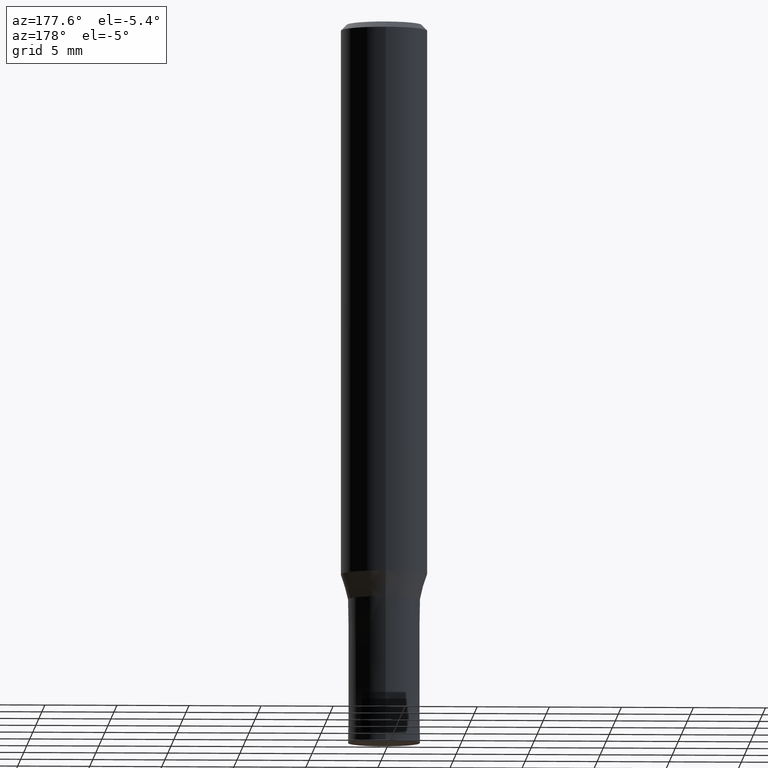
[diagram: clean part render]
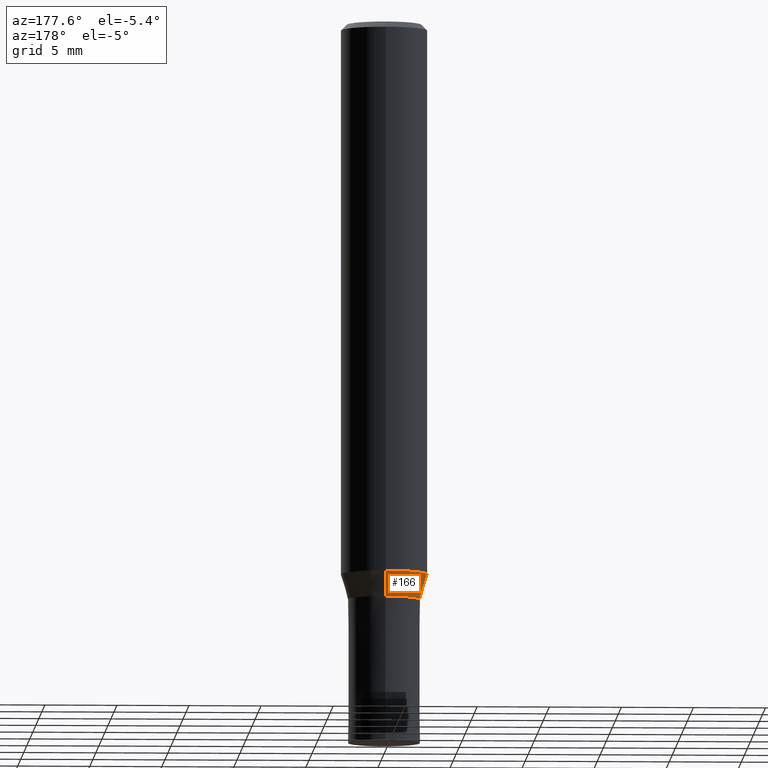
[diagram: same view with one face highlighted and labeled with its STEP entity id]
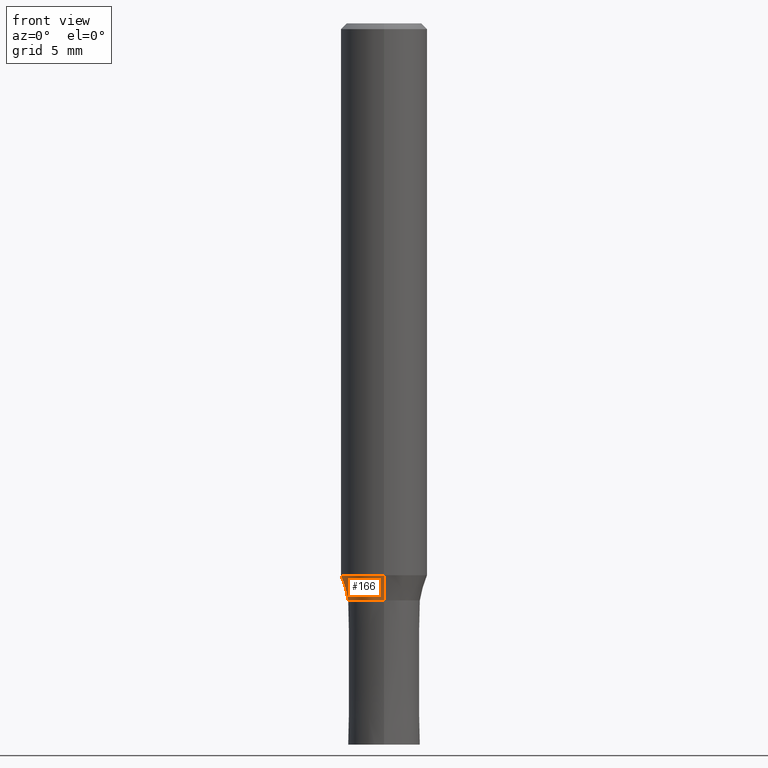
[diagram: same view with one face highlighted and labeled with its STEP entity id]
A machine part, auxiliary view. The second image highlights one B-rep face of the part: STEP entity #166.
A second angle (front view) of the same face is appended — the face is thin or edge-on in the first view.
In plain terms, the highlighted conical surface has half-angle 15.997 deg.
Its self-contained STEP definition (entity closure, byte-faithful):
#102=EDGE_CURVE('',#146,#128,#223,.T.);
#112=EDGE_CURVE('',#132,#172,#235,.T.);
#128=VERTEX_POINT('',#257);
#130=EDGE_CURVE('',#172,#128,#259,.T.);
#132=VERTEX_POINT('',#261);
#146=VERTEX_POINT('',#277);
#166=ADVANCED_FACE('',(#298),#299,.T.);
#172=VERTEX_POINT('',#305);
#176=EDGE_CURVE('',#146,#132,#310,.T.);
#223=CIRCLE('',#355,2.49995);
#235=CIRCLE('',#369,2.99995);
#257=CARTESIAN_POINT('',(0.0,2.49995,-40.0));
#259=LINE('',#396,#397);
#261=CARTESIAN_POINT('',(3.67375783114944E-016,-2.99995,-38.256));
#277=CARTESIAN_POINT('',(3.06145465423825E-016,-2.49995,-40.0));
#298=FACE_OUTER_BOUND('',#447,.T.);
#299=CONICAL_SURFACE('',#448,2.74995,0.279208199033747);
#305=CARTESIAN_POINT('',(0.0,2.99995,-38.256));
#310=LINE('',#462,#463);
#355=AXIS2_PLACEMENT_3D('',#487,#488,#489);
#369=AXIS2_PLACEMENT_3D('',#509,#510,#511);
#396=CARTESIAN_POINT('',(-3.36760624269385E-016,2.74995,-39.128));
#397=VECTOR('',#547,1.0);
#447=EDGE_LOOP('',(#595,#596,#597,#598));
#448=AXIS2_PLACEMENT_3D('',#599,#600,#601);
#462=CARTESIAN_POINT('',(3.36760624269385E-016,-2.74995,-39.128));
#463=VECTOR('',#611,1.0);
#487=CARTESIAN_POINT('',(0.0,0.0,-40.0));
#488=DIRECTION('',(0.0,0.0,-1.0));
#489=DIRECTION('',(0.0,1.0,0.0));
#509=CARTESIAN_POINT('',(0.0,0.0,-38.256));
#510=DIRECTION('',(0.0,0.0,-1.0));
#511=DIRECTION('',(0.0,1.0,0.0));
#547=DIRECTION('',(3.37494895041124E-017,-0.275594597388538,-0.961273955691222));
#595=ORIENTED_EDGE('',*,*,#130,.T.);
#596=ORIENTED_EDGE('',*,*,#102,.F.);
#597=ORIENTED_EDGE('',*,*,#176,.T.);
#598=ORIENTED_EDGE('',*,*,#112,.T.);
#599=CARTESIAN_POINT('',(0.0,0.0,-39.128));
#600=DIRECTION('',(-0.0,-0.0,1.0));
#601=DIRECTION('',(0.0,1.0,0.0));
#611=DIRECTION('',(3.37494895041124E-017,-0.275594597388538,0.961273955691222));